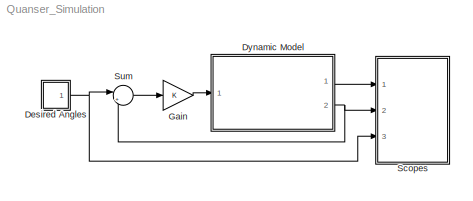
MODEL Quanser_Simulation
KIND model
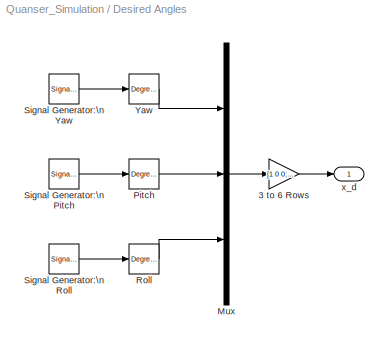
BLOCK [SubSystem] Desired Angles
  Ports = [0, 1]
  RequestExecContextInheritance = off
  SID = 30
  Variant = off
BLOCK [Gain] Desired Angles/3 to 6 Rows
  Gain = [1 0 0; 0 1 0; 0 0 1; 0 0 0; 0 0 0; 0 0 0];
  Multiplication = Matrix(K*u)
  OutDataTypeStr = Inherit: Inherit via internal rule
  ParamDataTypeStr = Inherit: Inherit via internal rule
  SID = 37
  SaturateOnIntegerOverflow = off
BLOCK [Mux] Desired Angles/Mux
  DisplayOption = bar
  Inputs = 3
  Ports = [3, 1]
  SID = 39
BLOCK [Reference] Desired Angles/Pitch  REF=simulink_extras/Transformations/Degrees to\nRadians
  Ports = [1, 1]
  SID = 40
  SourceBlock = simulink_extras/Transformations/Degrees to\nRadians
  SourceProductBaseCode = SL
  SourceProductName = Simulink
  SourceType = DegreesToRadians
BLOCK [Reference] Desired Angles/Roll  REF=simulink_extras/Transformations/Degrees to\nRadians
  Ports = [1, 1]
  SID = 41
  SourceBlock = simulink_extras/Transformations/Degrees to\nRadians
  SourceProductBaseCode = SL
  SourceProductName = Simulink
  SourceType = DegreesToRadians
BLOCK [SignalGenerator] Desired Angles/Signal Generator:\nPitch
  Amplitude = 5
  Frequency = 0.04
  Ports = [0, 1]
  SID = 42
  WaveForm = square
BLOCK [SignalGenerator] Desired Angles/Signal Generator:\nRoll
  Amplitude = 5
  Frequency = 0.04
  Ports = [0, 1]
  SID = 43
  WaveForm = square
BLOCK [SignalGenerator] Desired Angles/Signal Generator:\nYaw
  Amplitude = 5
  Frequency = 0.04
  Ports = [0, 1]
  SID = 44
  WaveForm = square
BLOCK [Reference] Desired Angles/Yaw  REF=simulink_extras/Transformations/Degrees to\nRadians
  Ports = [1, 1]
  SID = 48
  SourceBlock = simulink_extras/Transformations/Degrees to\nRadians
  SourceProductBaseCode = SL
  SourceProductName = Simulink
  SourceType = DegreesToRadians
BLOCK [Outport] Desired Angles/x_d
  IconDisplay = Port number
  SID = 49
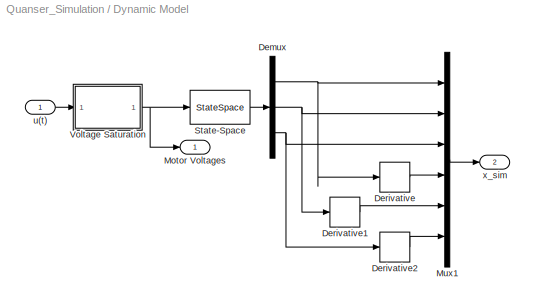
BLOCK [SubSystem] Dynamic Model
  Ports = [1, 2]
  RequestExecContextInheritance = off
  SID = 1
  Variant = off
BLOCK [Demux] Dynamic Model/Demux
  DisplayOption = bar
  Outputs = 3
  Ports = [1, 3]
  SID = 6
BLOCK [Derivative] Dynamic Model/Derivative
  SID = 143
BLOCK [Derivative] Dynamic Model/Derivative1
  SID = 144
BLOCK [Derivative] Dynamic Model/Derivative2
  SID = 145
BLOCK [Outport] Dynamic Model/Motor Voltages
  IconDisplay = Port number
  SID = 14
BLOCK [Mux] Dynamic Model/Mux1
  DisplayOption = bar
  Inputs = 6
  Ports = [6, 1]
  SID = 10
BLOCK [StateSpace] Dynamic Model/State-Space
  A = A
  B = B
  C = C
  D = D
  InitialCondition = 0
  Ports = [1, 1]
  SID = 11
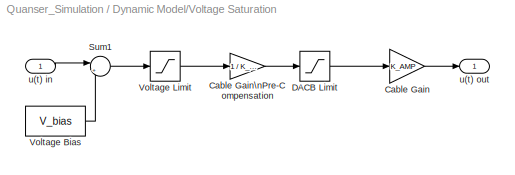
BLOCK [SubSystem] Dynamic Model/Voltage Saturation
  Ports = [1, 1]
  RequestExecContextInheritance = off
  SID = 140
  Variant = off
BLOCK [Gain] Dynamic Model/Voltage Saturation/Cable Gain
  Gain = K_AMP
  Multiplication = Matrix(K*u)
  SID = 3
BLOCK [Gain] Dynamic Model/Voltage Saturation/Cable Gain\nPre-Compensation
  Gain = 1 / K_AMP
  Multiplication = Matrix(K*u)
  SID = 4
BLOCK [Saturate] Dynamic Model/Voltage Saturation/DACB Limit
  InputPortMap = u0
  LowerLimit = -VMAX_DAC
  Ports = [1, 1]
  SID = 5
  UpperLimit = VMAX_DAC
BLOCK [Sum] Dynamic Model/Voltage Saturation/Sum1
  IconShape = round
  InputSameDT = off
  Inputs = |++
  OutDataTypeStr = Inherit: Inherit via internal rule
  Ports = [2, 1]
  SID = 79
  SaturateOnIntegerOverflow = off
BLOCK [Constant] Dynamic Model/Voltage Saturation/Voltage Bias
  SID = 22
  Value = V_bias
BLOCK [Saturate] Dynamic Model/Voltage Saturation/Voltage Limit
  InputPortMap = u0
  LowerLimit = 0
  Ports = [1, 1]
  SID = 12
  UpperLimit = VMAX_AMP
BLOCK [Inport] Dynamic Model/Voltage Saturation/u(t) in
  IconDisplay = Port number
  SID = 141
BLOCK [Outport] Dynamic Model/Voltage Saturation/u(t) out
  IconDisplay = Port number
  SID = 142
BLOCK [Inport] Dynamic Model/u(t)
  IconDisplay = Port number
  SID = 2
BLOCK [Outport] Dynamic Model/x_sim
  IconDisplay = Port number
  Port = 2
  SID = 13
BLOCK [Gain] Gain
  Gain = K
  Multiplication = Matrix(K*u)
  OutDataTypeStr = Inherit: Inherit via internal rule
  ParamDataTypeStr = Inherit: Inherit via internal rule
  SID = 77
  SaturateOnIntegerOverflow = off
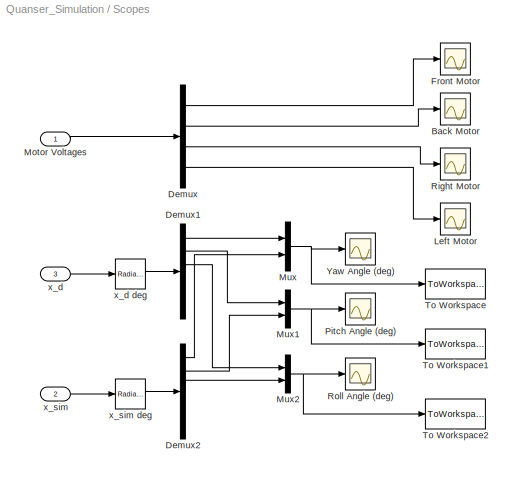
BLOCK [SubSystem] Scopes
  Ports = [3]
  RequestExecContextInheritance = off
  SID = 56
  Variant = off
BLOCK [Scope] Scopes/Back Motor
  NumInputPorts = 1
  Ports = [1]
  SID = 86
  ScopeSpecificationString = Simulink.scopes.TimeScopeBlockCfg('CurrentConfiguration', extmgr.ConfigurationSet(extmgr.Configuration('Core','General UI',true),extmgr.Configuration('Core','Source UI',true),extmgr.Configuration('Sources','WiredSimulink',true,'DataLogging',true,'DataLoggingVariableName','data_Vb','DataLoggingMaxPoints','10000','DataLoggingLimitDataPoints',true,'DataLoggingSaveFormat','Array','DataLoggingDecimatio...<+1739ch>
BLOCK [Demux] Scopes/Demux
  DisplayOption = bar
  Ports = [1, 4]
  SID = 84
BLOCK [Demux] Scopes/Demux1
  DisplayOption = bar
  Outputs = 6
  Ports = [1, 6]
  SID = 138
BLOCK [Demux] Scopes/Demux2
  DisplayOption = bar
  Outputs = 6
  Ports = [1, 6]
  SID = 146
BLOCK [Scope] Scopes/Front Motor
  NumInputPorts = 1
  Ports = [1]
  SID = 85
  ScopeSpecificationString = Simulink.scopes.TimeScopeBlockCfg('CurrentConfiguration', extmgr.ConfigurationSet(extmgr.Configuration('Core','General UI',true),extmgr.Configuration('Core','Source UI',true),extmgr.Configuration('Sources','WiredSimulink',true,'DataLogging',true,'DataLoggingVariableName','data_Vf','DataLoggingMaxPoints','10000','DataLoggingLimitDataPoints',true,'DataLoggingSaveFormat','Array','DataLoggingDecimatio...<+1741ch>
BLOCK [Scope] Scopes/Left Motor
  NumInputPorts = 1
  Ports = [1]
  SID = 88
  ScopeSpecificationString = Simulink.scopes.TimeScopeBlockCfg('CurrentConfiguration', extmgr.ConfigurationSet(extmgr.Configuration('Core','General UI',true),extmgr.Configuration('Core','Source UI',true),extmgr.Configuration('Sources','WiredSimulink',true,'DataLogging',true,'DataLoggingVariableName','data_Vl','DataLoggingMaxPoints','10000','DataLoggingLimitDataPoints',true,'DataLoggingSaveFormat','Array','DataLoggingDecimatio...<+1740ch>
BLOCK [Inport] Scopes/Motor Voltages
  IconDisplay = Port number
  SID = 58
BLOCK [Mux] Scopes/Mux
  DisplayOption = bar
  Inputs = 2
  Ports = [2, 1]
  SID = 60
BLOCK [Mux] Scopes/Mux1
  DisplayOption = bar
  Inputs = 2
  Ports = [2, 1]
  SID = 61
BLOCK [Mux] Scopes/Mux2
  DisplayOption = bar
  Inputs = 2
  Ports = [2, 1]
  SID = 62
BLOCK [Scope] Scopes/Pitch Angle (deg)
  NumInputPorts = 1
  Ports = [1]
  SID = 81
  ScopeSpecificationString = Simulink.scopes.TimeScopeBlockCfg('CurrentConfiguration', extmgr.ConfigurationSet(extmgr.Configuration('Core','General UI',true),extmgr.Configuration('Core','Source UI',true),extmgr.Configuration('Sources','WiredSimulink',true,'DataLogging',true,'DataLoggingVariableName','data_pitch','DataLoggingMaxPoints','10000','DataLoggingLimitDataPoints',true,'DataLoggingSaveFormat','Array','DataLoggingDecima...<+1807ch>
BLOCK [Scope] Scopes/Right Motor
  NumInputPorts = 1
  Ports = [1]
  SID = 87
  ScopeSpecificationString = Simulink.scopes.TimeScopeBlockCfg('CurrentConfiguration', extmgr.ConfigurationSet(extmgr.Configuration('Core','General UI',true),extmgr.Configuration('Core','Source UI',true),extmgr.Configuration('Sources','WiredSimulink',true,'DataLogging',true,'DataLoggingVariableName','data_Vr','DataLoggingMaxPoints','10000','DataLoggingLimitDataPoints',true,'DataLoggingSaveFormat','Array','DataLoggingDecimatio...<+1740ch>
BLOCK [Scope] Scopes/Roll Angle (deg)
  NumInputPorts = 1
  Ports = [1]
  SID = 82
  ScopeSpecificationString = Simulink.scopes.TimeScopeBlockCfg('CurrentConfiguration', extmgr.ConfigurationSet(extmgr.Configuration('Core','General UI',true),extmgr.Configuration('Core','Source UI',true),extmgr.Configuration('Sources','WiredSimulink',true,'DataLogging',true,'DataLoggingVariableName','data_roll','DataLoggingMaxPoints','10000','DataLoggingLimitDataPoints',true,'DataLoggingSaveFormat','Array','DataLoggingDecimat...<+1824ch>
BLOCK [ToWorkspace] Scopes/To Workspace
  FixptAsFi = on
  MaxDataPoints = inf
  Ports = [1]
  SID = 135
  SampleTime = -1
  Save2DSignal = 2-D array (concatenate along first dimension)
  SaveFormat = Timeseries
  VariableName = Yaw_Angle
BLOCK [ToWorkspace] Scopes/To Workspace1
  FixptAsFi = on
  MaxDataPoints = inf
  Ports = [1]
  SID = 136
  SampleTime = -1
  Save2DSignal = 2-D array (concatenate along first dimension)
  SaveFormat = Timeseries
  VariableName = Pitch_Angle
BLOCK [ToWorkspace] Scopes/To Workspace2
  FixptAsFi = on
  MaxDataPoints = inf
  Ports = [1]
  SID = 137
  SampleTime = -1
  Save2DSignal = 2-D array (concatenate along first dimension)
  SaveFormat = Timeseries
  VariableName = Roll_Angle
BLOCK [Scope] Scopes/Yaw Angle (deg)
  NumInputPorts = 1
  Ports = [1]
  SID = 80
  ScopeSpecificationString = Simulink.scopes.TimeScopeBlockCfg('CurrentConfiguration', extmgr.ConfigurationSet(extmgr.Configuration('Core','General UI',true),extmgr.Configuration('Core','Source UI',true),extmgr.Configuration('Sources','WiredSimulink',true,'DataLogging',true,'DataLoggingVariableName','data_yaw','DataLoggingMaxPoints','10000','DataLoggingLimitDataPoints',true,'DataLoggingSaveFormat','Array','DataLoggingDecimati...<+1818ch>
BLOCK [Inport] Scopes/x_d
  IconDisplay = Port number
  Port = 3
  SID = 59
BLOCK [Reference] Scopes/x_d deg  REF=simulink_extras/Transformations/Radians\nto Degrees
  Ports = [1, 1]
  SID = 63
  SourceBlock = simulink_extras/Transformations/Radians\nto Degrees
  SourceProductBaseCode = SL
  SourceProductName = Simulink
  SourceType = RadiansToDegrees
BLOCK [Inport] Scopes/x_sim
  IconDisplay = Port number
  Port = 2
  SID = 57
BLOCK [Reference] Scopes/x_sim deg  REF=simulink_extras/Transformations/Radians\nto Degrees
  Ports = [1, 1]
  SID = 64
  SourceBlock = simulink_extras/Transformations/Radians\nto Degrees
  SourceProductBaseCode = SL
  SourceProductName = Simulink
  SourceType = RadiansToDegrees
BLOCK [Sum] Sum
  IconShape = round
  InputSameDT = off
  Inputs = |+-
  OutDataTypeStr = Inherit: Inherit via internal rule
  Ports = [2, 1]
  SID = 78
  SaturateOnIntegerOverflow = off
LINE Desired Angles/3 to 6 Rows:1 -> Desired Angles/x_d:1
LINE Desired Angles/Mux:1 -> Desired Angles/3 to 6 Rows:1
LINE Desired Angles/Pitch:1 -> Desired Angles/Mux:2
LINE Desired Angles/Roll:1 -> Desired Angles/Mux:3
LINE Desired Angles/Signal Generator:\nPitch:1 -> Desired Angles/Pitch:1
LINE Desired Angles/Signal Generator:\nRoll:1 -> Desired Angles/Roll:1
LINE Desired Angles/Signal Generator:\nYaw:1 -> Desired Angles/Yaw:1
LINE Desired Angles/Yaw:1 -> Desired Angles/Mux:1
NET Desired Angles:1 -> Scopes:3, Sum:1
NET Dynamic Model/Demux:1 -> Dynamic Model/Derivative:1, Dynamic Model/Mux1:1
NET Dynamic Model/Demux:2 -> Dynamic Model/Derivative1:1, Dynamic Model/Mux1:2
NET Dynamic Model/Demux:3 -> Dynamic Model/Derivative2:1, Dynamic Model/Mux1:3
LINE Dynamic Model/Derivative1:1 -> Dynamic Model/Mux1:5
LINE Dynamic Model/Derivative2:1 -> Dynamic Model/Mux1:6
LINE Dynamic Model/Derivative:1 -> Dynamic Model/Mux1:4
LINE Dynamic Model/Mux1:1 -> Dynamic Model/x_sim:1
LINE Dynamic Model/State-Space:1 -> Dynamic Model/Demux:1
LINE Dynamic Model/Voltage Saturation/Cable Gain:1 -> Dynamic Model/Voltage Saturation/u(t) out:1
LINE Dynamic Model/Voltage Saturation/Cable Gain\nPre-Compensation:1 -> Dynamic Model/Voltage Saturation/DACB Limit:1
LINE Dynamic Model/Voltage Saturation/DACB Limit:1 -> Dynamic Model/Voltage Saturation/Cable Gain:1
LINE Dynamic Model/Voltage Saturation/Sum1:1 -> Dynamic Model/Voltage Saturation/Voltage Limit:1
LINE Dynamic Model/Voltage Saturation/Voltage Bias:1 -> Dynamic Model/Voltage Saturation/Sum1:2
LINE Dynamic Model/Voltage Saturation/Voltage Limit:1 -> Dynamic Model/Voltage Saturation/Cable Gain\nPre-Compensation:1
LINE Dynamic Model/Voltage Saturation/u(t) in:1 -> Dynamic Model/Voltage Saturation/Sum1:1
NET Dynamic Model/Voltage Saturation:1 -> Dynamic Model/Motor Voltages:1, Dynamic Model/State-Space:1
LINE Dynamic Model/u(t):1 -> Dynamic Model/Voltage Saturation:1
LINE Dynamic Model:1 -> Scopes:1
NET Dynamic Model:2 -> Scopes:2, Sum:2
LINE Gain:1 -> Dynamic Model:1
LINE Scopes/Demux1:1 -> Scopes/Mux:1
LINE Scopes/Demux1:2 -> Scopes/Mux1:1
LINE Scopes/Demux1:3 -> Scopes/Mux2:1
LINE Scopes/Demux2:1 -> Scopes/Mux:2
LINE Scopes/Demux2:2 -> Scopes/Mux1:2
LINE Scopes/Demux2:3 -> Scopes/Mux2:2
LINE Scopes/Demux:1 -> Scopes/Front Motor:1
LINE Scopes/Demux:2 -> Scopes/Back Motor:1
LINE Scopes/Demux:3 -> Scopes/Right Motor:1
LINE Scopes/Demux:4 -> Scopes/Left Motor:1
LINE Scopes/Motor Voltages:1 -> Scopes/Demux:1
NET Scopes/Mux1:1 -> Scopes/Pitch Angle (deg):1, Scopes/To Workspace1:1
NET Scopes/Mux2:1 -> Scopes/Roll Angle (deg):1, Scopes/To Workspace2:1
NET Scopes/Mux:1 -> Scopes/To Workspace:1, Scopes/Yaw Angle (deg):1
LINE Scopes/x_d deg:1 -> Scopes/Demux1:1
LINE Scopes/x_d:1 -> Scopes/x_d deg:1
LINE Scopes/x_sim deg:1 -> Scopes/Demux2:1
LINE Scopes/x_sim:1 -> Scopes/x_sim deg:1
LINE Sum:1 -> Gain:1
note: NET lines group one-source signal fan-out (src -> all destinations, sorted); 1:1 wires keep LINE
